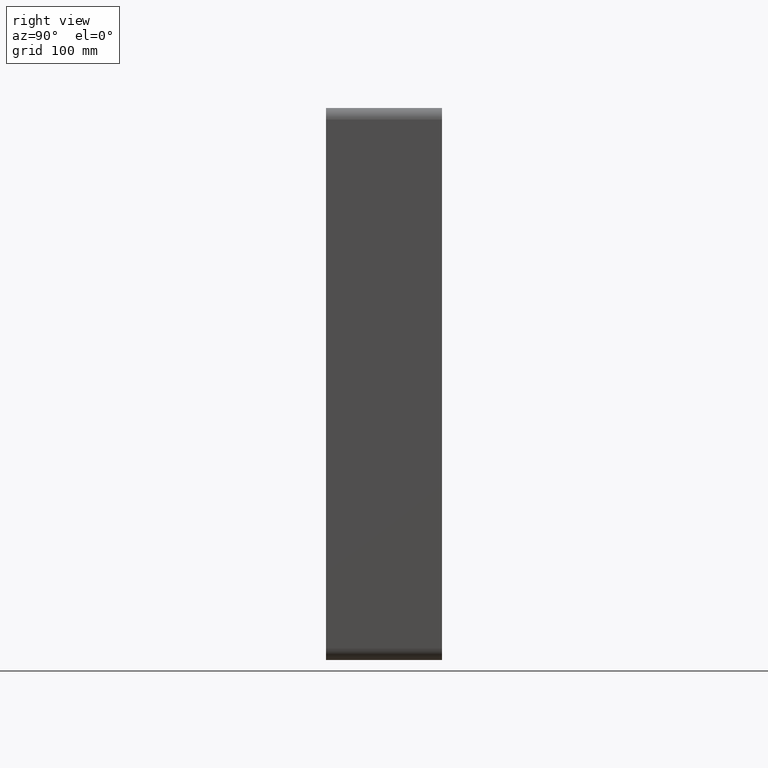
[diagram: clean part render]
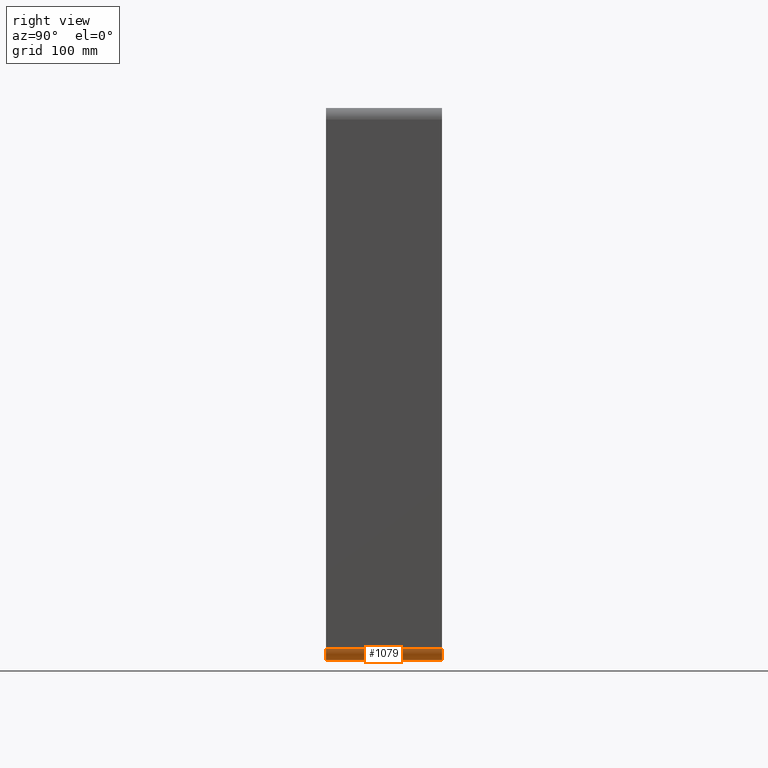
[diagram: same view with one face highlighted and labeled with its STEP entity id]
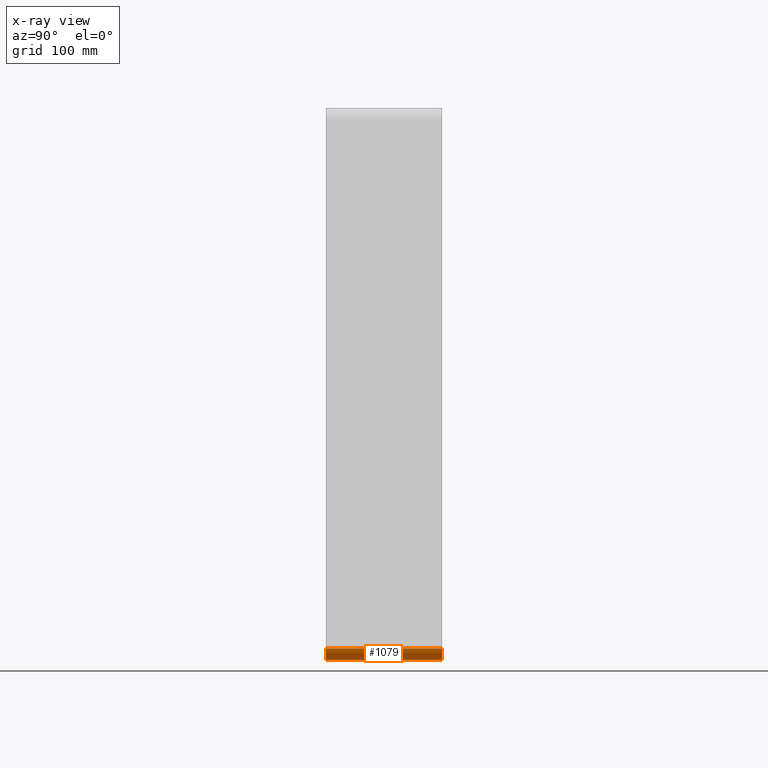
[diagram: x-ray of the same camera — body ghosted, the highlighted face saturated]
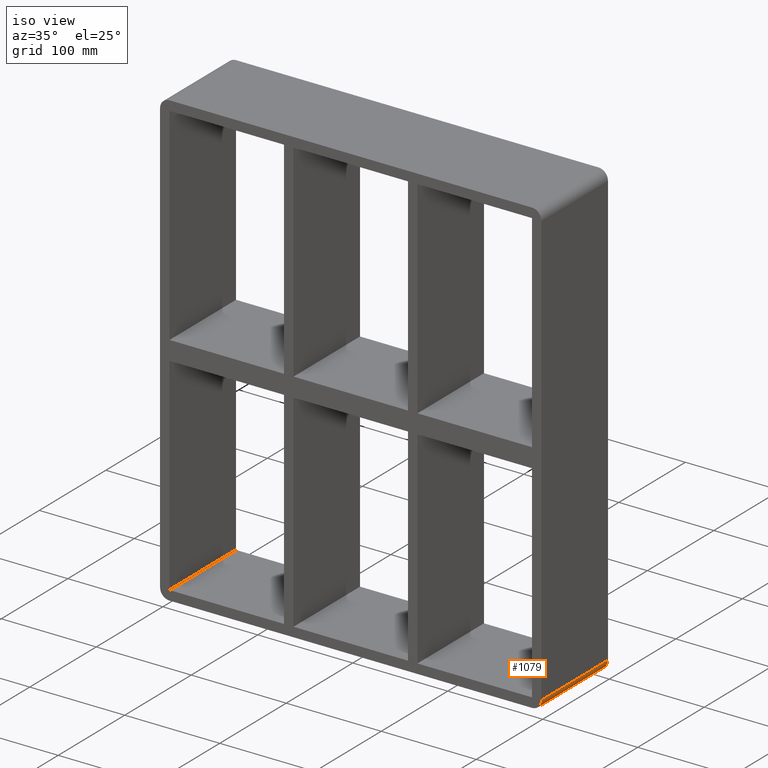
[diagram: same view with one face highlighted and labeled with its STEP entity id]
A machine part, right view. The second image highlights one B-rep face of the part: STEP entity #1079.
The next image is the same camera in x-ray: the body ghosted, the highlighted face saturated — about 0% of this face is hidden behind the body in this view.
A second angle (iso view) of the same face is appended — the face is thin or edge-on in the first view.
In plain terms, the highlighted cylindrical surface (edge-blend (fillet) strip) has radius 10 mm, axis along (0, 1, 0).
Its self-contained STEP definition (entity closure, byte-faithful):
#306=CARTESIAN_POINT('',(190.75000000000003,-3.0,-237.99999999999997));
#307=VERTEX_POINT('',#306);
#314=CARTESIAN_POINT('',(200.75000000000003,-3.0,-227.99999999999997));
#315=VERTEX_POINT('',#314);
#316=CARTESIAN_POINT('',(190.75000000000003,-3.0,-227.99999999999997));
#317=DIRECTION('',(0.0,1.0,0.0));
#318=DIRECTION('',(0.707106781186547,0.0,-0.707106781186547));
#319=AXIS2_PLACEMENT_3D('',#316,#317,#318);
#320=CIRCLE('',#319,9.999999999999998);
#321=EDGE_CURVE('',#315,#307,#320,.T.);
#834=CARTESIAN_POINT('',(200.75000000000003,97.0,-227.99999999999997));
#835=VERTEX_POINT('',#834);
#842=CARTESIAN_POINT('',(190.75000000000003,97.0,-237.99999999999997));
#843=VERTEX_POINT('',#842);
#844=CARTESIAN_POINT('',(190.75000000000003,97.0,-227.99999999999997));
#845=DIRECTION('',(0.0,-1.0,0.0));
#846=DIRECTION('',(0.707106781186547,0.0,-0.707106781186547));
#847=AXIS2_PLACEMENT_3D('',#844,#845,#846);
#848=CIRCLE('',#847,9.999999999999998);
#849=EDGE_CURVE('',#843,#835,#848,.T.);
#1053=CARTESIAN_POINT('',(190.75000000000003,-3.0,-237.99999999999997));
#1054=DIRECTION('',(0.0,1.0,0.0));
#1055=VECTOR('',#1054,100.0);
#1056=LINE('',#1053,#1055);
#1057=EDGE_CURVE('',#307,#843,#1056,.T.);
#1063=CARTESIAN_POINT('',(190.75000000000003,0.0,-227.99999999999997));
#1064=DIRECTION('',(0.0,1.0,0.0));
#1065=DIRECTION('',(0.707106781186547,0.0,-0.707106781186547));
#1066=AXIS2_PLACEMENT_3D('',#1063,#1064,#1065);
#1067=CYLINDRICAL_SURFACE('',#1066,10.0);
#1068=ORIENTED_EDGE('',*,*,#849,.T.);
#1069=CARTESIAN_POINT('',(200.75000000000003,97.0,-227.99999999999997));
#1070=DIRECTION('',(0.0,-1.0,0.0));
#1071=VECTOR('',#1070,100.0);
#1072=LINE('',#1069,#1071);
#1073=EDGE_CURVE('',#835,#315,#1072,.T.);
#1074=ORIENTED_EDGE('',*,*,#1073,.T.);
#1075=ORIENTED_EDGE('',*,*,#321,.T.);
#1076=ORIENTED_EDGE('',*,*,#1057,.T.);
#1077=EDGE_LOOP('',(#1068,#1074,#1075,#1076));
#1078=FACE_OUTER_BOUND('',#1077,.T.);
#1079=ADVANCED_FACE('',(#1078),#1067,.T.);